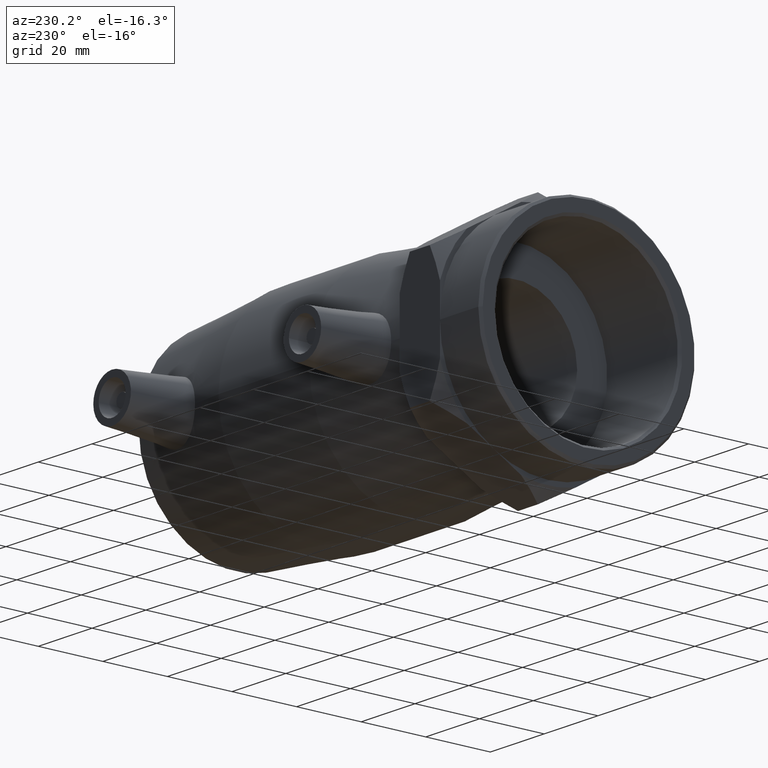
[diagram: clean part render]
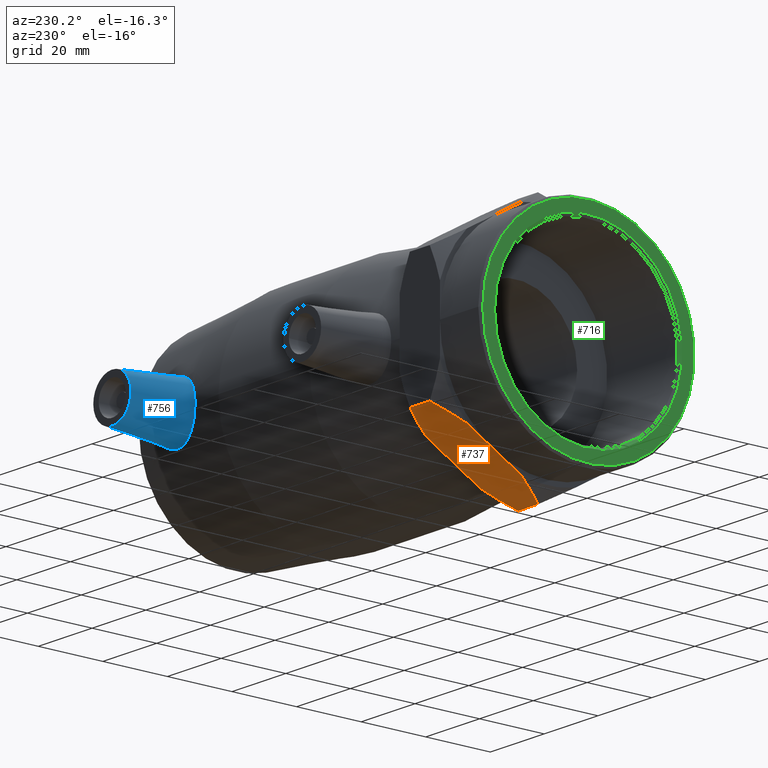
[diagram: same view with three faces highlighted in distinct colors, each labeled with its STEP entity id]
A machine part, auxiliary view with three faces highlighted in distinct colors.
Their STEP definitions:

[orange] entity #737 — the highlighted planar face has unit normal (0, 0.5, -0.866).
#18=LINE('',#1264,#42);
#19=LINE('',#1266,#43);
#25=LINE('',#1275,#49);
#29=LINE('',#1280,#53);
#30=LINE('',#1281,#54);
#42=VECTOR('',#966,9.72299214552678);
#43=VECTOR('',#969,9.72299214552678);
#49=VECTOR('',#981,7.40000000000002);
#53=VECTOR('',#987,7.40000000000002);
#54=VECTOR('',#988,19.4459842910536);
#70=(
BOUNDED_CURVE()
B_SPLINE_CURVE(2,(#1159,#1160,#1161),.UNSPECIFIED.,.F.,.F.)
B_SPLINE_CURVE_WITH_KNOTS((3,3),(0.,1.03535849599883),.UNSPECIFIED.)
CURVE()
GEOMETRIC_REPRESENTATION_ITEM()
RATIONAL_B_SPLINE_CURVE((1.,1.00865828191503,1.))
REPRESENTATION_ITEM('')
);
#75=(
BOUNDED_CURVE()
B_SPLINE_CURVE(2,(#1188,#1189,#1190),.UNSPECIFIED.,.F.,.F.)
B_SPLINE_CURVE_WITH_KNOTS((3,3),(0.,1.03535849599883),.UNSPECIFIED.)
CURVE()
GEOMETRIC_REPRESENTATION_ITEM()
RATIONAL_B_SPLINE_CURVE((1.,1.00865828191501,1.))
REPRESENTATION_ITEM('')
);
#86=(
BOUNDED_CURVE()
B_SPLINE_CURVE(2,(#1248,#1249,#1250),.UNSPECIFIED.,.F.,.F.)
B_SPLINE_CURVE_WITH_KNOTS((3,3),(0.,1.03535849599883),.UNSPECIFIED.)
CURVE()
GEOMETRIC_REPRESENTATION_ITEM()
RATIONAL_B_SPLINE_CURVE((1.,1.00865828191498,1.))
REPRESENTATION_ITEM('')
);
#87=(
BOUNDED_CURVE()
B_SPLINE_CURVE(2,(#1254,#1255,#1256),.UNSPECIFIED.,.F.,.F.)
B_SPLINE_CURVE_WITH_KNOTS((3,3),(0.,1.03535849599883),.UNSPECIFIED.)
CURVE()
GEOMETRIC_REPRESENTATION_ITEM()
RATIONAL_B_SPLINE_CURVE((1.,1.00865828191503,1.))
REPRESENTATION_ITEM('')
);
#106=PLANE('',#820);
#178=FACE_OUTER_BOUND('',#240,.T.);
#240=EDGE_LOOP('',(#584,#585,#586,#587,#588,#589,#590,#591,#592));
#346=VERTEX_POINT('',#1119);
#357=VERTEX_POINT('',#1153);
#359=VERTEX_POINT('',#1158);
#366=VERTEX_POINT('',#1186);
#367=VERTEX_POINT('',#1187);
#382=VERTEX_POINT('',#1242);
#383=VERTEX_POINT('',#1246);
#384=VERTEX_POINT('',#1252);
#385=VERTEX_POINT('',#1253);
#429=EDGE_CURVE('',#359,#357,#70,.T.);
#437=EDGE_CURVE('',#366,#367,#75,.T.);
#454=EDGE_CURVE('',#382,#383,#86,.T.);
#455=EDGE_CURVE('',#384,#385,#87,.T.);
#459=EDGE_CURVE('',#346,#367,#18,.T.);
#460=EDGE_CURVE('',#359,#346,#19,.T.);
#466=EDGE_CURVE('',#385,#366,#25,.T.);
#470=EDGE_CURVE('',#382,#357,#29,.T.);
#471=EDGE_CURVE('',#383,#384,#30,.T.);
#584=ORIENTED_EDGE('',*,*,#437,.T.);
#585=ORIENTED_EDGE('',*,*,#459,.F.);
#586=ORIENTED_EDGE('',*,*,#460,.F.);
#587=ORIENTED_EDGE('',*,*,#429,.T.);
#588=ORIENTED_EDGE('',*,*,#470,.F.);
#589=ORIENTED_EDGE('',*,*,#454,.T.);
#590=ORIENTED_EDGE('',*,*,#471,.T.);
#591=ORIENTED_EDGE('',*,*,#455,.T.);
#592=ORIENTED_EDGE('',*,*,#466,.T.);
#737=ADVANCED_FACE('',(#178),#106,.T.);
#820=AXIS2_PLACEMENT_3D('',#1279,#985,#986);
#966=DIRECTION('',(0.,-0.866025403784438,-0.500000000000001));
#969=DIRECTION('',(0.,-0.866025403784438,-0.500000000000001));
#981=DIRECTION('',(-1.,0.,0.));
#985=DIRECTION('center_axis',(0.,0.500000000000001,-0.866025403784438));
#986=DIRECTION('ref_axis',(0.,-0.866025403784438,-0.500000000000001));
#987=DIRECTION('',(-1.,0.,0.));
#988=DIRECTION('',(0.,-0.866025403784438,-0.500000000000001));
#1119=CARTESIAN_POINT('',(-65.5,16.75,-29.0118510267787));
#1153=CARTESIAN_POINT('',(-61.7,33.5,-19.3412340178524));
#1158=CARTESIAN_POINT('',(-65.5,25.1703581988228,-24.1503549540153));
#1159=CARTESIAN_POINT('Ctrl Pts',(-65.5,25.1703581988228,-24.1503549540153));
#1160=CARTESIAN_POINT('Ctrl Pts',(-64.2287681445462,29.1200450930844,-21.8700021623986));
#1161=CARTESIAN_POINT('Ctrl Pts',(-61.7,33.5,-19.3412340178524));
#1186=CARTESIAN_POINT('',(-61.7,4.88498130835069E-14,-38.6824680357049));
#1187=CARTESIAN_POINT('',(-65.5,8.32964180117729,-33.8733470995421));
#1188=CARTESIAN_POINT('Ctrl Pts',(-61.7,5.60434388960021E-14,-38.6824680357049));
#1189=CARTESIAN_POINT('Ctrl Pts',(-64.2287681445462,4.37995490691574,-36.1536998911587));
#1190=CARTESIAN_POINT('Ctrl Pts',(-65.5,8.32964180117726,-33.8733470995421));
#1242=CARTESIAN_POINT('',(-54.3,33.5,-19.3412340178524));
#1246=CARTESIAN_POINT('',(-50.5,25.1703581988228,-24.1503549540153));
#1248=CARTESIAN_POINT('Ctrl Pts',(-54.3,33.5,-19.3412340178524));
#1249=CARTESIAN_POINT('Ctrl Pts',(-51.7712318554538,29.1200450930843,-21.8700021623986));
#1250=CARTESIAN_POINT('Ctrl Pts',(-50.5,25.1703581988228,-24.1503549540153));
#1252=CARTESIAN_POINT('',(-50.5,8.32964180117729,-33.8733470995421));
#1253=CARTESIAN_POINT('',(-54.3,4.21884749357559E-14,-38.6824680357049));
#1254=CARTESIAN_POINT('Ctrl Pts',(-50.5,8.32964180117728,-33.8733470995421));
#1255=CARTESIAN_POINT('Ctrl Pts',(-51.7712318554538,4.37995490691577,-36.1536998911587));
#1256=CARTESIAN_POINT('Ctrl Pts',(-54.3,7.00542986200027E-14,-38.6824680357049));
#1264=CARTESIAN_POINT('',(-65.5,33.5,-19.3412340178524));
#1266=CARTESIAN_POINT('',(-65.5,33.5,-19.3412340178524));
#1275=CARTESIAN_POINT('',(-50.5,5.19510080595559E-14,-38.6824680357049));
#1279=CARTESIAN_POINT('Origin',(-50.5,33.5,-19.3412340178524));
#1280=CARTESIAN_POINT('',(-50.5,33.5,-19.3412340178524));
#1281=CARTESIAN_POINT('',(-50.5,33.5,-19.3412340178524));

[blue] entity #756 — the highlighted conical surface has half-angle 5 deg.
#15=B_SPLINE_CURVE_WITH_KNOTS('',3,(#1338,#1339,#1340,#1341,#1342,#1343,
#1344,#1345,#1346,#1347,#1348,#1349,#1350,#1351,#1352,#1353,#1354,#1355,
#1356,#1357,#1358,#1359,#1360,#1361,#1362,#1363,#1364,#1365,#1366,#1367,
#1368,#1369,#1370,#1371),.UNSPECIFIED.,.T.,.F.,(4,2,2,2,2,2,2,2,2,2,2,2,
2,2,2,2,4),(0.,0.343701492372538,0.687402984745076,1.02422675975865,1.36105053477222,
1.6978743097858,2.03469808479937,2.37839957717191,2.72210106954445,3.04522156905644,
3.36834206856844,3.69362005405313,4.01889803953782,4.3441760250225,4.66945401050719,
4.99257451001919,5.31569500953119),.UNSPECIFIED.);
#141=FACE_BOUND('',#270,.T.);
#197=FACE_OUTER_BOUND('',#269,.T.);
#269=EDGE_LOOP('',(#670));
#270=EDGE_LOOP('',(#671));
#330=CIRCLE('',#852,7.);
#399=VERTEX_POINT('',#1335);
#400=VERTEX_POINT('',#1337);
#494=EDGE_CURVE('',#399,#399,#330,.T.);
#495=EDGE_CURVE('',#400,#400,#15,.T.);
#670=ORIENTED_EDGE('',*,*,#494,.F.);
#671=ORIENTED_EDGE('',*,*,#495,.F.);
#707=CONICAL_SURFACE('',#851,7.,5.);
#756=ADVANCED_FACE('',(#197,#141),#707,.T.);
#851=AXIS2_PLACEMENT_3D('',#1334,#1059,#1060);
#852=AXIS2_PLACEMENT_3D('',#1336,#1061,#1062);
#1059=DIRECTION('center_axis',(0.,-1.,0.));
#1060=DIRECTION('ref_axis',(-1.,0.,0.));
#1061=DIRECTION('center_axis',(0.,1.,0.));
#1062=DIRECTION('ref_axis',(-1.,0.,0.));
#1334=CARTESIAN_POINT('Origin',(35.35,51.,0.));
#1335=CARTESIAN_POINT('',(42.35,51.,8.57252759403147E-16));
#1336=CARTESIAN_POINT('Origin',(35.35,51.,0.));
#1337=CARTESIAN_POINT('',(35.6671886307007,30.3773904597837,8.79852904851299));
#1338=CARTESIAN_POINT('Ctrl Pts',(35.6671886307007,30.3773904597837,8.79852904851299));
#1339=CARTESIAN_POINT('Ctrl Pts',(34.5271469979322,30.4863518022889,8.83008868950542));
#1340=CARTESIAN_POINT('Ctrl Pts',(33.3200839499548,30.674268183196,8.62298550936632));
#1341=CARTESIAN_POINT('Ctrl Pts',(31.1104534237076,31.1373033650582,7.73260105010648));
#1342=CARTESIAN_POINT('Ctrl Pts',(30.1068287812536,31.4083006258617,7.04980507731292));
#1343=CARTESIAN_POINT('Ctrl Pts',(28.5383247413678,31.8778221183829,5.47975321124123));
#1344=CARTESIAN_POINT('Ctrl Pts',(27.8611902221542,32.1086415172993,4.49200533932274));
#1345=CARTESIAN_POINT('Ctrl Pts',(26.958168971404,32.4286967165414,2.31382049434863));
#1346=CARTESIAN_POINT('Ctrl Pts',(26.7327683113098,32.5149572125875,1.12274591671191));
#1347=CARTESIAN_POINT('Ctrl Pts',(26.7327683113098,32.5149572125875,-1.12274591671191));
#1348=CARTESIAN_POINT('Ctrl Pts',(26.958168971404,32.4286967165414,-2.31382049434863));
#1349=CARTESIAN_POINT('Ctrl Pts',(27.8611902221542,32.1086415172993,-4.49200533932273));
#1350=CARTESIAN_POINT('Ctrl Pts',(28.5383247413678,31.8778221183829,-5.47975321124123));
#1351=CARTESIAN_POINT('Ctrl Pts',(30.1068287812536,31.4083006258617,-7.04980507731292));
#1352=CARTESIAN_POINT('Ctrl Pts',(31.1104534237076,31.1373033650582,-7.73260105010648));
#1353=CARTESIAN_POINT('Ctrl Pts',(33.3200839499548,30.674268183196,-8.62298550936632));
#1354=CARTESIAN_POINT('Ctrl Pts',(34.5271469979322,30.4863518022889,-8.83008868950542));
#1355=CARTESIAN_POINT('Ctrl Pts',(36.7389640812576,30.2749537692277,-8.76885921236681));
#1356=CARTESIAN_POINT('Ctrl Pts',(37.879401717365,30.2304776062026,-8.52339862615002));
#1357=CARTESIAN_POINT('Ctrl Pts',(39.9668860140409,30.262944935348,-7.5947666050826));
#1358=CARTESIAN_POINT('Ctrl Pts',(40.9140788542704,30.3360778524557,-6.91179446762884));
#1359=CARTESIAN_POINT('Ctrl Pts',(42.406794360669,30.4982208570224,-5.35717232340341));
#1360=CARTESIAN_POINT('Ctrl Pts',(43.0528093111661,30.597943446048,-4.37791662310557));
#1361=CARTESIAN_POINT('Ctrl Pts',(43.9087505336002,30.742818161528,-2.24157963899444));
#1362=CARTESIAN_POINT('Ctrl Pts',(44.1185848733033,30.7849823962703,-1.08425995161562));
#1363=CARTESIAN_POINT('Ctrl Pts',(44.1185848733033,30.7849823962703,1.08425995161562));
#1364=CARTESIAN_POINT('Ctrl Pts',(43.9087505336003,30.742818161528,2.24157963899443));
#1365=CARTESIAN_POINT('Ctrl Pts',(43.0528093111661,30.597943446048,4.37791662310557));
#1366=CARTESIAN_POINT('Ctrl Pts',(42.406794360669,30.4982208570224,5.35717232340341));
#1367=CARTESIAN_POINT('Ctrl Pts',(40.9140788542704,30.3360778524557,6.91179446762884));
#1368=CARTESIAN_POINT('Ctrl Pts',(39.9668860140409,30.262944935348,7.5947666050826));
#1369=CARTESIAN_POINT('Ctrl Pts',(37.879401717365,30.2304776062026,8.52339862615001));
#1370=CARTESIAN_POINT('Ctrl Pts',(36.7389640812576,30.2749537692277,8.76885921236681));
#1371=CARTESIAN_POINT('Ctrl Pts',(35.6671886307007,30.3773904597837,8.79852904851299));

[green] entity #716 — the highlighted planar face has unit normal (-1, 0, 0).
#100=PLANE('',#778);
#127=FACE_BOUND('',#216,.T.);
#157=FACE_OUTER_BOUND('',#215,.T.);
#215=EDGE_LOOP('',(#510));
#216=EDGE_LOOP('',(#511));
#296=CIRCLE('',#777,29.078);
#297=CIRCLE('',#779,32.75);
#341=VERTEX_POINT('',#1106);
#342=VERTEX_POINT('',#1109);
#412=EDGE_CURVE('',#341,#341,#296,.T.);
#413=EDGE_CURVE('',#342,#342,#297,.T.);
#510=ORIENTED_EDGE('',*,*,#413,.F.);
#511=ORIENTED_EDGE('',*,*,#412,.F.);
#716=ADVANCED_FACE('',(#157,#127),#100,.T.);
#777=AXIS2_PLACEMENT_3D('',#1107,#887,#888);
#778=AXIS2_PLACEMENT_3D('',#1108,#889,#890);
#779=AXIS2_PLACEMENT_3D('',#1110,#891,#892);
#887=DIRECTION('center_axis',(-1.,0.,0.));
#888=DIRECTION('ref_axis',(0.,-1.,0.));
#889=DIRECTION('center_axis',(-1.,0.,0.));
#890=DIRECTION('ref_axis',(0.,0.,1.));
#891=DIRECTION('center_axis',(1.,0.,0.));
#892=DIRECTION('ref_axis',(0.,-1.,0.));
#1106=CARTESIAN_POINT('',(-80.5,29.078,-3.56102796256067E-15));
#1107=CARTESIAN_POINT('Origin',(-80.5,0.,0.));
#1108=CARTESIAN_POINT('Origin',(-80.5,33.5,0.));
#1109=CARTESIAN_POINT('',(-80.5,32.75,4.01071826720758E-15));
#1110=CARTESIAN_POINT('Origin',(-80.5,0.,0.));